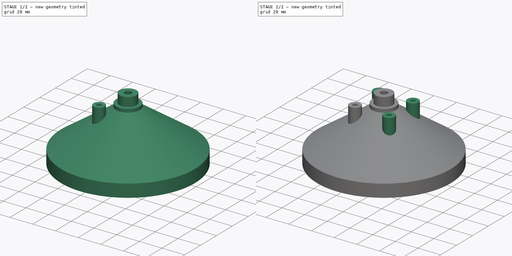
[diagram: build sequence overview — one tinted view per stage of 2, left to right]
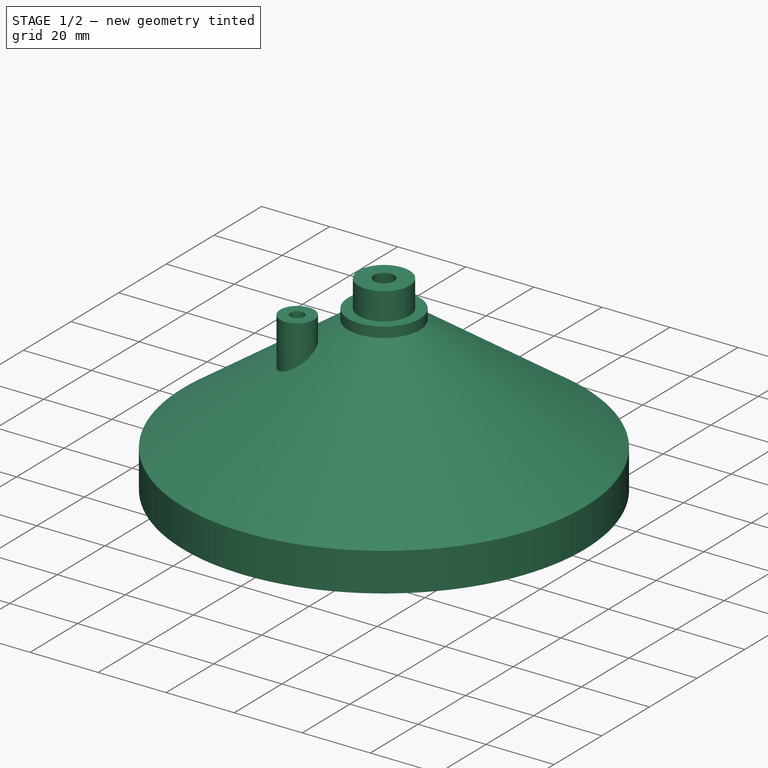
[diagram: stage 1 of 2 — iso view after this stage's code; geometry added in this stage tinted green]
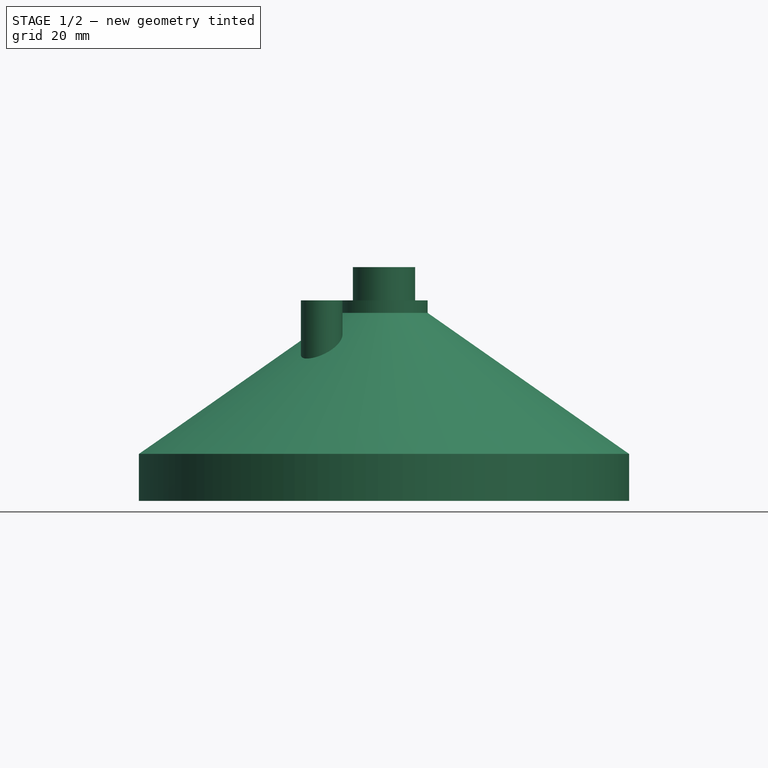
[diagram: stage 1 of 2 — front view after this stage's code; geometry added in this stage tinted green]
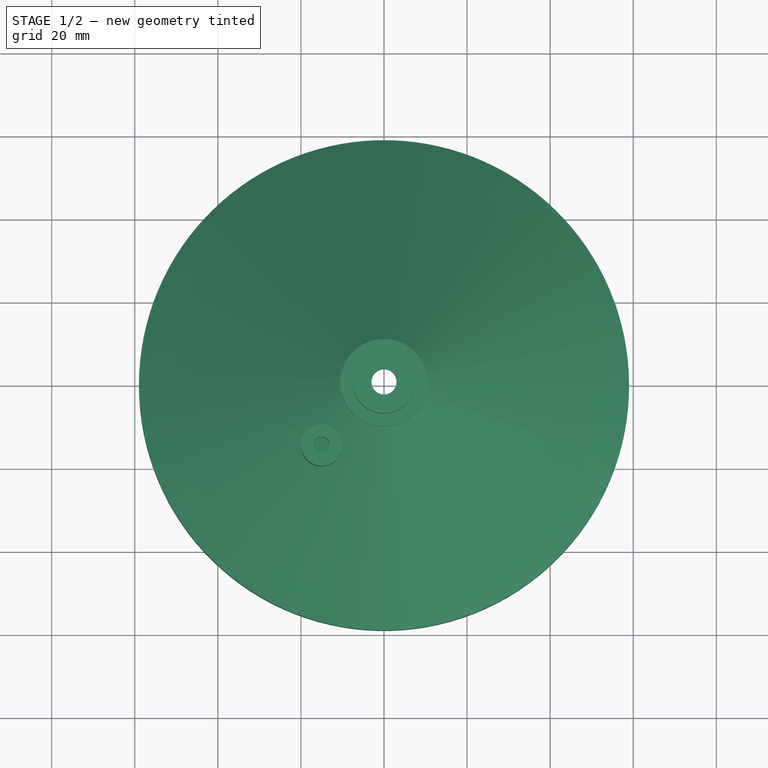
[diagram: stage 1 of 2 — top view after this stage's code; geometry added in this stage tinted green]
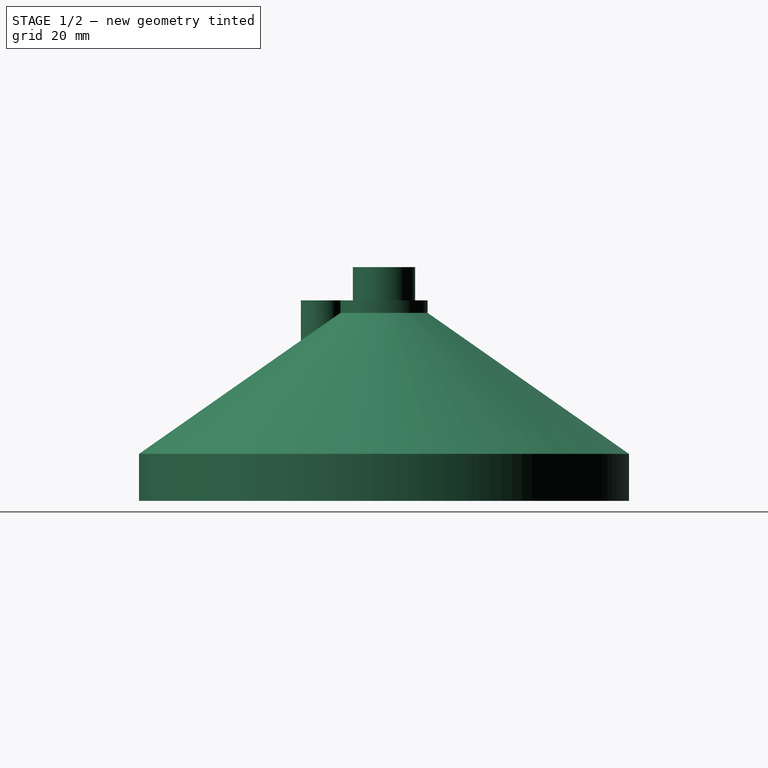
[diagram: stage 1 of 2 — right view after this stage's code; geometry added in this stage tinted green]
FCSTD DOCUMENT  (FreeCAD 0.16RUnknown)
Label: catcher
License: All rights reserved
LicenseURL: http://en.wikipedia.org/wiki/All_rights_reserved
objects: Sketcher::SketchObject×2, PartDesign::Revolution×1, PartDesign::Pad×1, PartDesign::PolarPattern×1
note: 7 computed .brp shape members not serialized (recipe doc carries the construction recipe); baked Part::Feature solids carry a one-line shape summary decoded from their .brp

FEATURE [Sketcher::SketchObject] Sketch001
  Placement = pos=(0,0,0) rot=(1,0,0;1.5708rad)
  sketch-geometry (12):
    g0: LineSegment StartX=56.5 StartY=0 StartZ=0 EndX=59 EndY=0 EndZ=0
    g1: LineSegment StartX=59 StartY=11.3014 StartZ=0 EndX=10.5 EndY=45.2615 EndZ=0
    g2: LineSegment StartX=5 StartY=46.0607 StartZ=0 EndX=56.5 EndY=10 EndZ=0
    g3: LineSegment StartX=56.5 StartY=10 StartZ=0 EndX=56.5 EndY=0 EndZ=0
    g4: LineSegment [constr] StartX=56.5 StartY=10 StartZ=0 EndX=59 EndY=10 EndZ=0
    g5: LineSegment StartX=59 StartY=11.3014 StartZ=0 EndX=59 EndY=0 EndZ=0
    g6: LineSegment [constr] StartX=56.5 StartY=10 StartZ=0 EndX=57.9339 EndY=12.0479 EndZ=0
    g7: LineSegment StartX=7.5 StartY=48.2615 StartZ=0 EndX=7.5 EndY=56.2615 EndZ=0
    g8: LineSegment StartX=7.5 StartY=56.2615 StartZ=0 EndX=3 EndY=56.2615 EndZ=0
    g9: LineSegment StartX=3 StartY=56.2615 StartZ=0 EndX=5 EndY=46.0607 EndZ=0
    g10: LineSegment StartX=7.5 StartY=48.2615 StartZ=0 EndX=10.5 EndY=48.2615 EndZ=0
    g11: LineSegment StartX=10.5 StartY=48.2615 StartZ=0 EndX=10.5 EndY=45.2615 EndZ=0
  constraints (36):
    c: PointOnObject(g0,g-1)
    c: PointOnObject(g0,g-1)
    c: Coincident(g2,g3)
    c: Coincident(g3,g0)
    c: Vertical(g3)
    c: DistanceX(g0,g0) = 2.5
    c: DistanceX(g-1,g0) = 56.5
    c: Parallel(g1,g2)
    c: DistanceY(g3,g3) = 10
    c: Coincident(g4,g2)
    c: Horizontal(g4)
    c: Angle(g4,g2) = 2.53073
    c: Coincident(g5,g1)
    c: Coincident(g5,g0)
    c: Vertical(g5)
    c: Coincident(g6,g2)
    c: PointOnObject(g6,g1)
    c: Perpendicular(g2,g6)
    c: Distance(g6) = 2.5
    c: PointOnObject(g4,g5)
    c: Vertical(g7)
    c: Coincident(g7,g8)
    c: Horizontal(g8)
    c: Coincident(g8,g9)
    c: DistanceY(g7,g7) = 8
    c: DistanceX(g-1,g9) = 5
    c: DistanceX(g-1,g7) = 7.5
    c: DistanceX(g-1,g8) = 3
    c: Coincident(g2,g9)
    c: Coincident(g7,g10)
    c: Horizontal(g10)
    c: Coincident(g10,g11)
    c: Vertical(g11)
    c: Coincident(g1,g11)
    c: DistanceX(g10,g10) = 3
    c: DistanceY(g11,g11) = 3
FEATURE [PartDesign::Revolution] Revolution
  Angle = 360
  Axis = (0,0,1)
  Base = (0,0,0)
  Placement = pos=(0,0,0) rot=(1,0,0;1.5708rad)
  ReferenceAxis = -> Sketch001 [V_Axis]
  Reversed = true
  Sketch = -> Sketch001
FEATURE [Sketcher::SketchObject] Sketch
  Placement = pos=(0,0,48.2615) rot=(0,0,1;3.14159rad)
  Support = -> Revolution [Face10]
  sketch-geometry (2):
    g0: Circle CenterX=15 CenterY=15 CenterZ=0 NormalX=0 NormalY=0 NormalZ=1 Radius=5
    g1: Circle CenterX=15 CenterY=15 CenterZ=0 NormalX=0 NormalY=0 NormalZ=1 Radius=2
  constraints (5):
    c: Coincident(g1,g0)
    c: Radius(g0) = 5
    c: Radius(g1) = 2
    c: DistanceY(g-1,g0) = 15
    c: DistanceX(g-1,g0) = 15
FEATURE [PartDesign::Pad] Pad
  Length = 10
  Length2 = 100
  Placement = pos=(0,0,0) rot=(1,0,0;1.5708rad)
  Sketch = -> Sketch
  Type = 3
  UpToFace = -> Revolution [Face8]
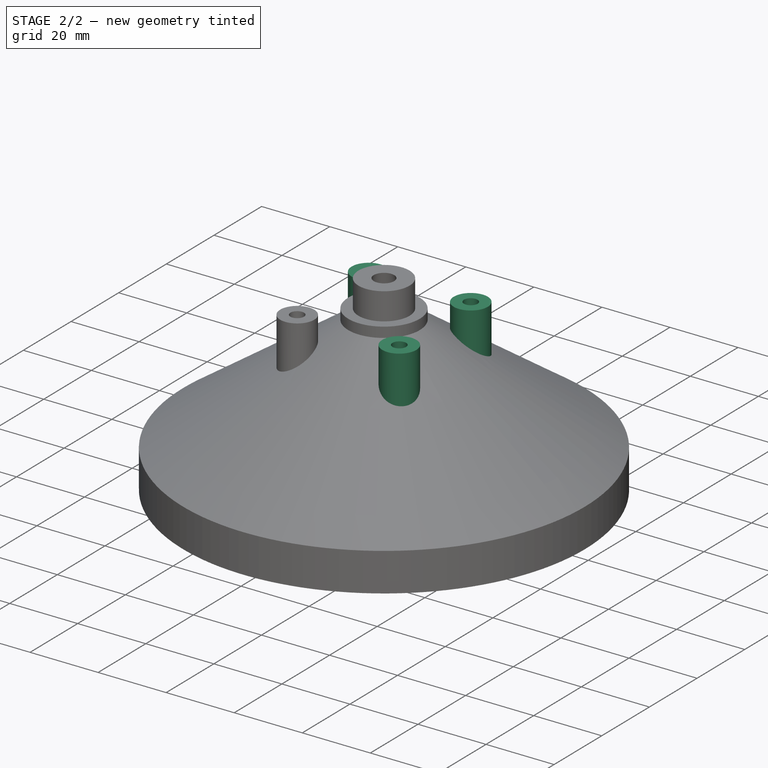
[diagram: stage 2 of 2 — iso view after this stage's code; geometry added in this stage tinted green]
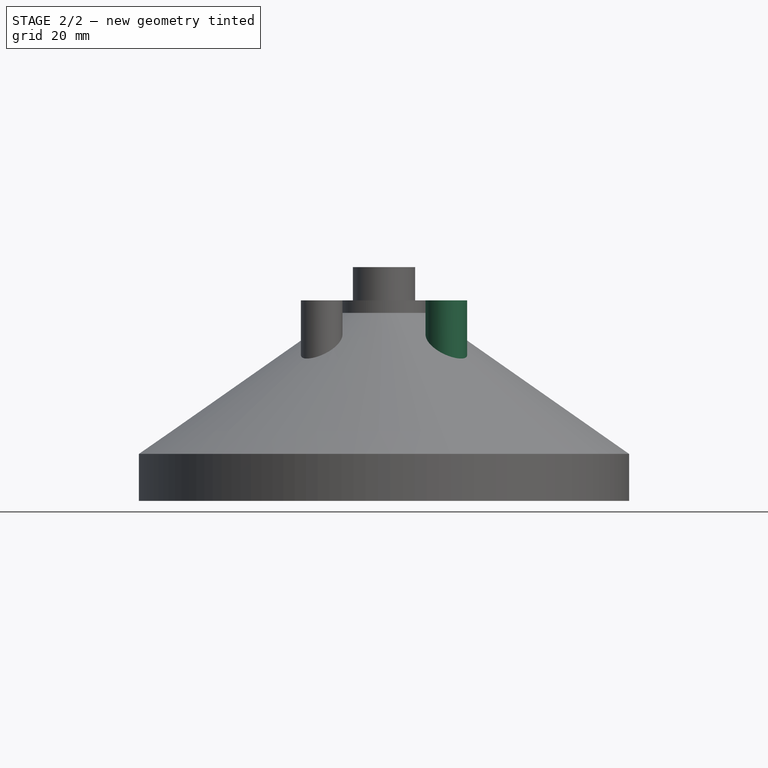
[diagram: stage 2 of 2 — front view after this stage's code; geometry added in this stage tinted green]
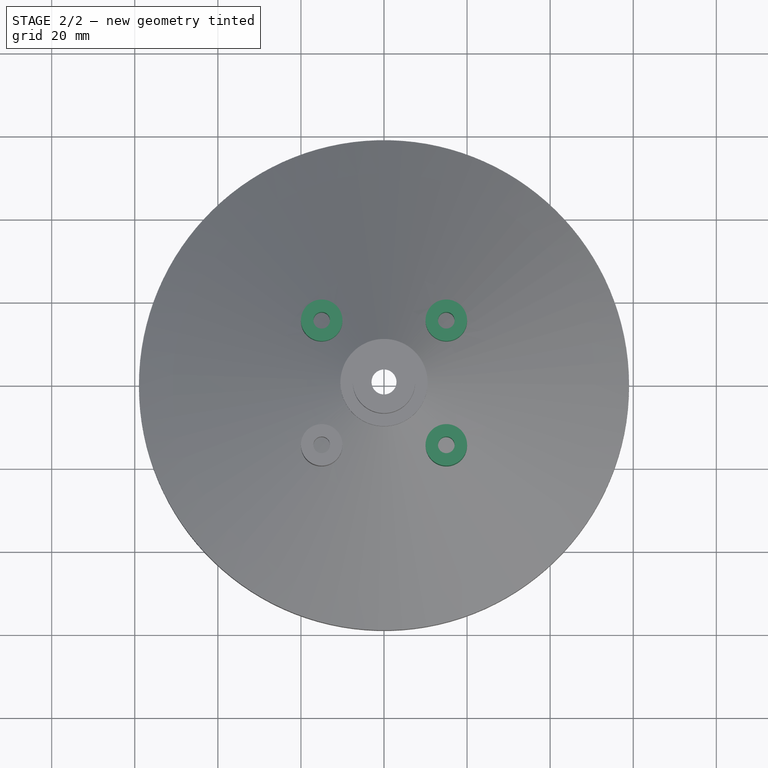
[diagram: stage 2 of 2 — top view after this stage's code; geometry added in this stage tinted green]
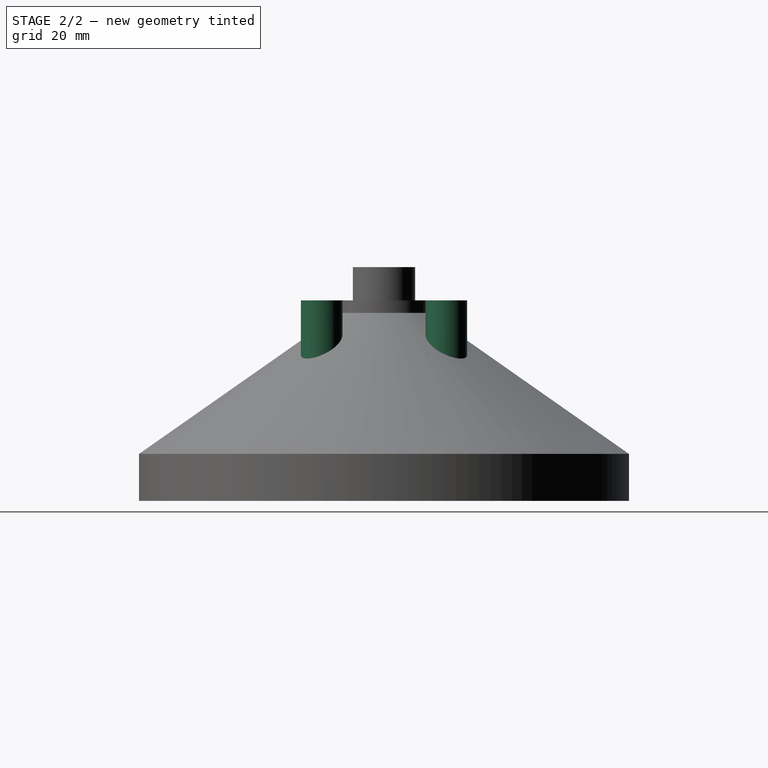
[diagram: stage 2 of 2 — right view after this stage's code; geometry added in this stage tinted green]
FEATURE [PartDesign::PolarPattern] PolarPattern
  Angle = 360
  Axis = -> Sketch [N_Axis]
  Occurrences = 4
  Originals = -> [Pad]
  Placement = pos=(0,0,0) rot=(1,0,0;1.5708rad)
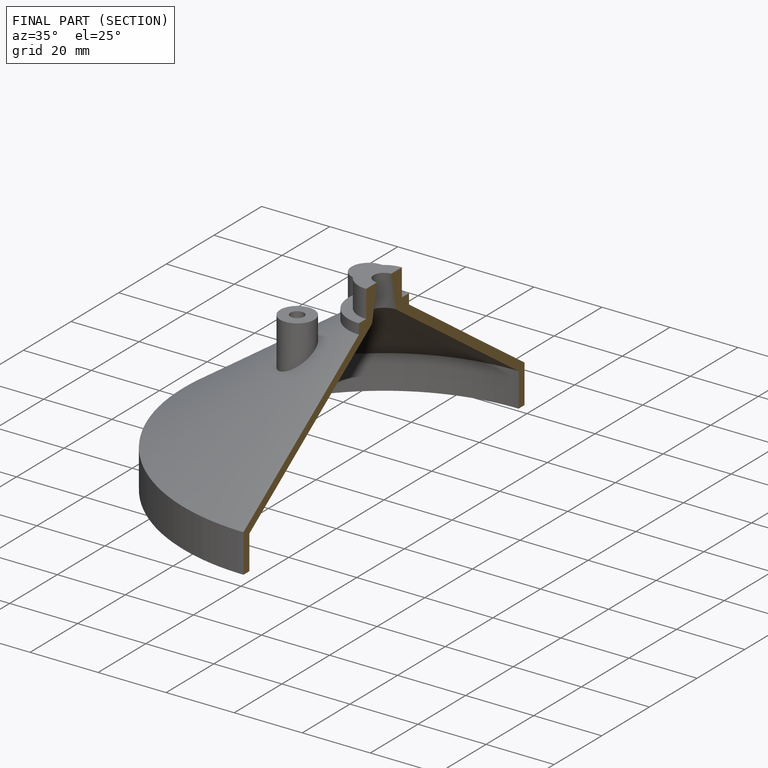
[diagram: finished part — half-section view (interior)]
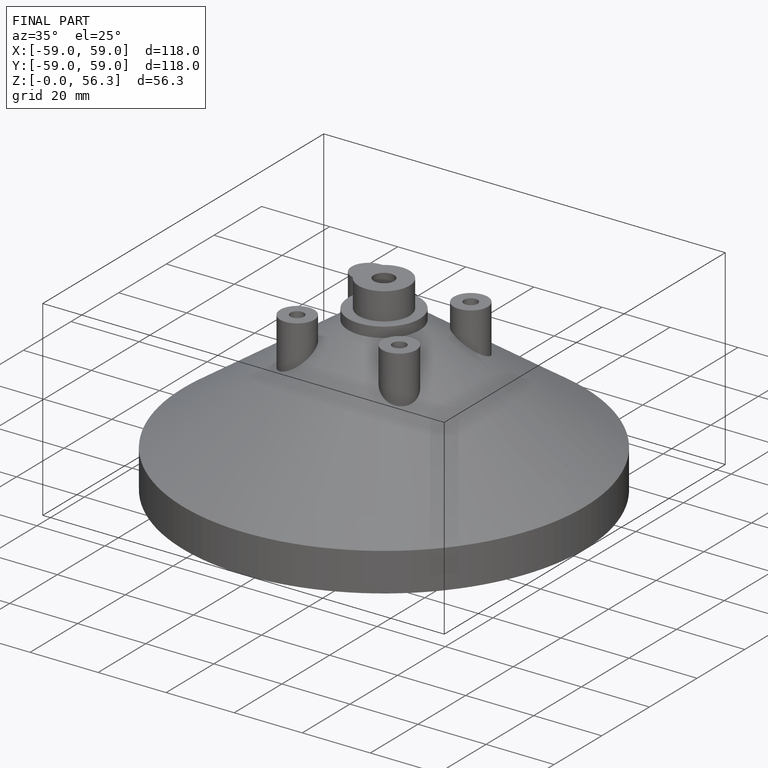
[diagram: finished part — iso view with bounding-box wireframe]
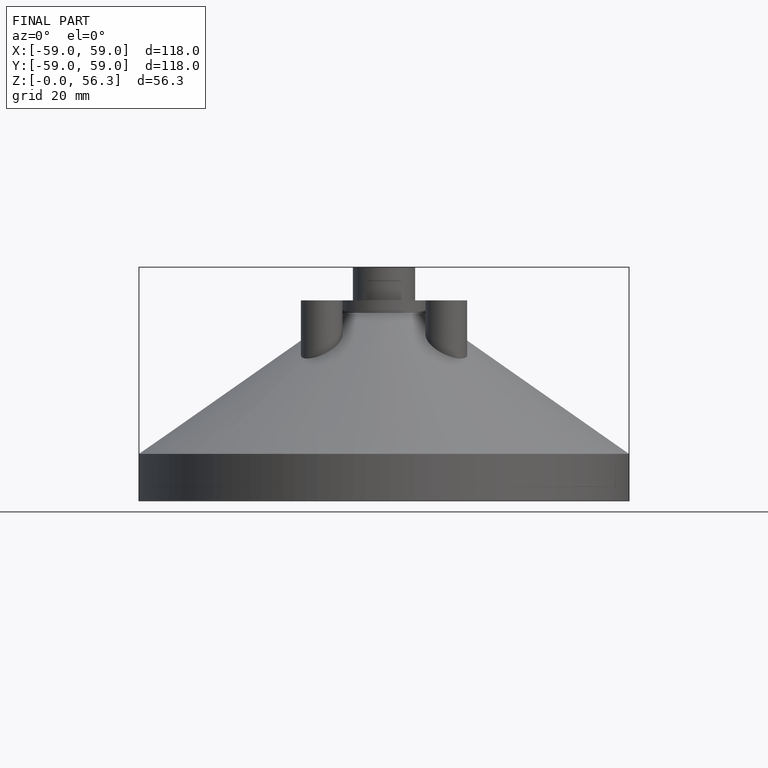
[diagram: finished part — front view with bounding-box wireframe]
